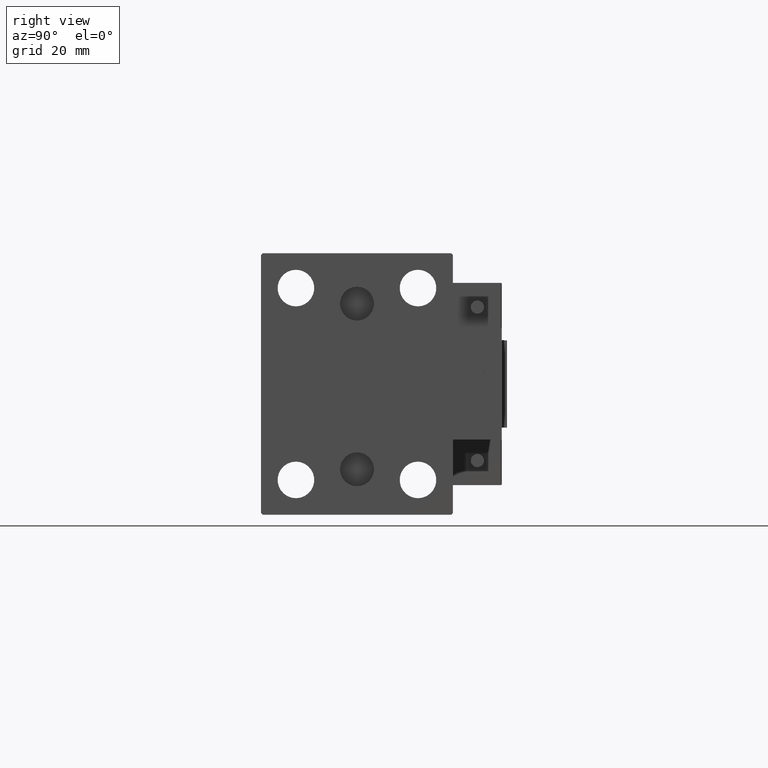
[diagram: clean part render]
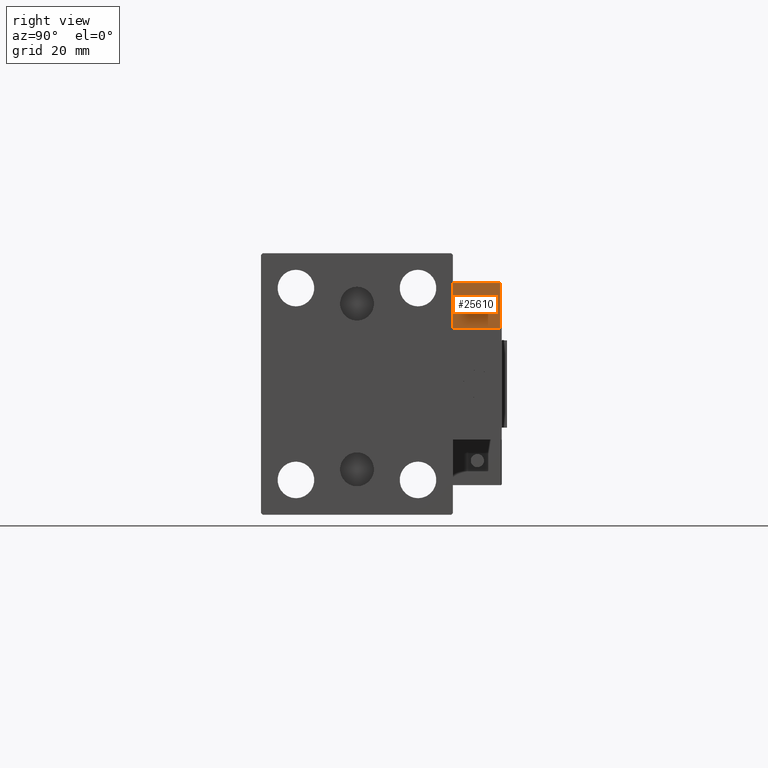
[diagram: same view with one face highlighted and labeled with its STEP entity id]
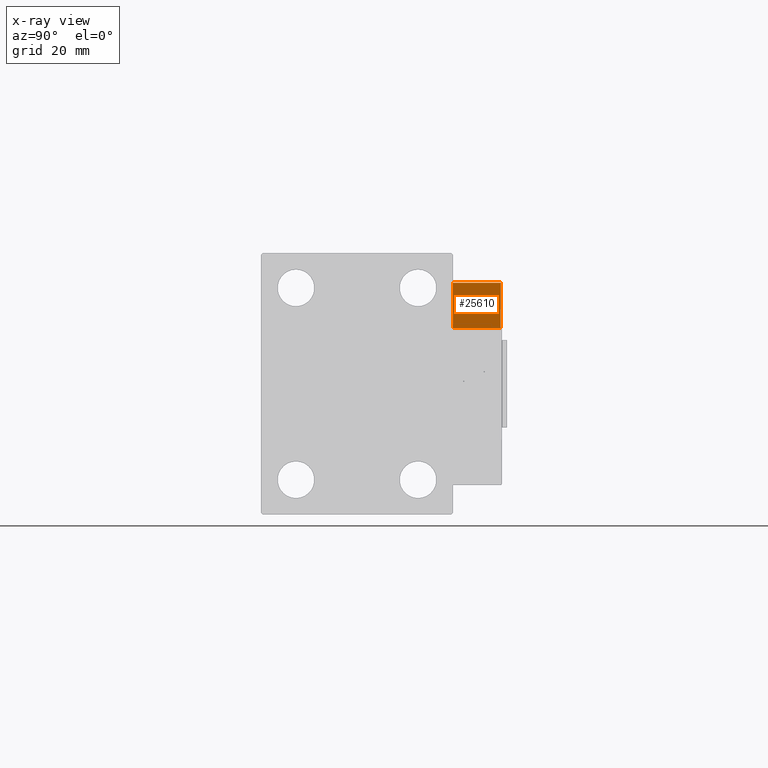
[diagram: x-ray of the same camera — body ghosted, the highlighted face saturated]
A machine part, right view. The second image highlights one B-rep face of the part: STEP entity #25610.
The next image is the same camera in x-ray: the body ghosted, the highlighted face saturated — about 6% of this face is hidden behind the body in this view.
In plain terms, the highlighted planar face has unit normal (-1, 0, 0).
Its self-contained STEP definition (entity closure, byte-faithful):
#3575 = LINE ( 'NONE', #14461, #8112 ) ;
#5347 = CARTESIAN_POINT ( 'NONE',  ( -26.99999999999993605, 20.00000000000002132, 14.00000000000000000 ) ) ;
#5409 = VECTOR ( 'NONE', #20992, 1000.000000000000000 ) ;
#7383 = VERTEX_POINT ( 'NONE', #41130 ) ;
#8112 = VECTOR ( 'NONE', #14218, 1000.000000000000000 ) ;
#9665 = DIRECTION ( 'NONE',  ( 1.000000000000000000, -8.006416042969869188E-16, 0.000000000000000000 ) ) ;
#10650 = EDGE_CURVE ( 'NONE', #24310, #17782, #3575, .T. ) ;
#12655 = VECTOR ( 'NONE', #15960, 1000.000000000000000 ) ;
#13229 = VERTEX_POINT ( 'NONE', #25482 ) ;
#13701 = DIRECTION ( 'NONE',  ( 8.006416042969869188E-16, 1.000000000000000000, 0.000000000000000000 ) ) ;
#13953 = FACE_OUTER_BOUND ( 'NONE', #34977, .T. ) ;
#14081 = ORIENTED_EDGE ( 'NONE', *, *, #10650, .T. ) ;
#14218 = DIRECTION ( 'NONE',  ( 8.006416042969869188E-16, 1.000000000000000000, -0.000000000000000000 ) ) ;
#14461 = CARTESIAN_POINT ( 'NONE',  ( -26.99999999999993605, 20.00000000000002132, 13.70000000000000107 ) ) ;
#15960 = DIRECTION ( 'NONE',  ( -0.000000000000000000, -0.000000000000000000, -1.000000000000000000 ) ) ;
#16988 = PLANE ( 'NONE',  #46344 ) ;
#17782 = VERTEX_POINT ( 'NONE', #18467 ) ;
#18467 = CARTESIAN_POINT ( 'NONE',  ( -26.99999999999993605, 20.00000000000002132, 13.70000000000000107 ) ) ;
#19497 = LINE ( 'NONE', #25889, #12655 ) ;
#20992 = DIRECTION ( 'NONE',  ( -0.000000000000000000, -0.000000000000000000, -1.000000000000000000 ) ) ;
#23295 = ORIENTED_EDGE ( 'NONE', *, *, #32781, .F. ) ;
#24261 = LINE ( 'NONE', #39900, #37740 ) ;
#24310 = VERTEX_POINT ( 'NONE', #36806 ) ;
#25482 = CARTESIAN_POINT ( 'NONE',  ( -26.99999999999993605, 20.00000000000002132, 0.000000000000000000 ) ) ;
#25610 = ADVANCED_FACE ( 'NONE', ( #13953 ), #16988, .F. ) ;
#25889 = CARTESIAN_POINT ( 'NONE',  ( -26.99999999999994671, 7.000000000000005329, 14.00000000000000000 ) ) ;
#28798 = LINE ( 'NONE', #5347, #5409 ) ;
#32781 = EDGE_CURVE ( 'NONE', #24310, #7383, #19497, .T. ) ;
#33440 = ORIENTED_EDGE ( 'NONE', *, *, #37798, .T. ) ;
#34821 = EDGE_CURVE ( 'NONE', #17782, #13229, #28798, .T. ) ;
#34977 = EDGE_LOOP ( 'NONE', ( #23295, #14081, #45691, #33440 ) ) ;
#36806 = CARTESIAN_POINT ( 'NONE',  ( -26.99999999999994671, 7.000000000000005329, 13.70000000000000107 ) ) ;
#37740 = VECTOR ( 'NONE', #42947, 1000.000000000000000 ) ;
#37798 = EDGE_CURVE ( 'NONE', #13229, #7383, #24261, .T. ) ;
#39900 = CARTESIAN_POINT ( 'NONE',  ( -26.99999999999993605, 20.00000000000002132, 0.000000000000000000 ) ) ;
#41130 = CARTESIAN_POINT ( 'NONE',  ( -26.99999999999994671, 7.000000000000005329, 0.000000000000000000 ) ) ;
#42947 = DIRECTION ( 'NONE',  ( -8.006416042969869188E-16, -1.000000000000000000, 0.000000000000000000 ) ) ;
#44237 = CARTESIAN_POINT ( 'NONE',  ( -26.99999999999993605, 20.00000000000002132, 14.00000000000000000 ) ) ;
#45691 = ORIENTED_EDGE ( 'NONE', *, *, #34821, .T. ) ;
#46344 = AXIS2_PLACEMENT_3D ( 'NONE', #44237, #9665, #13701 ) ;